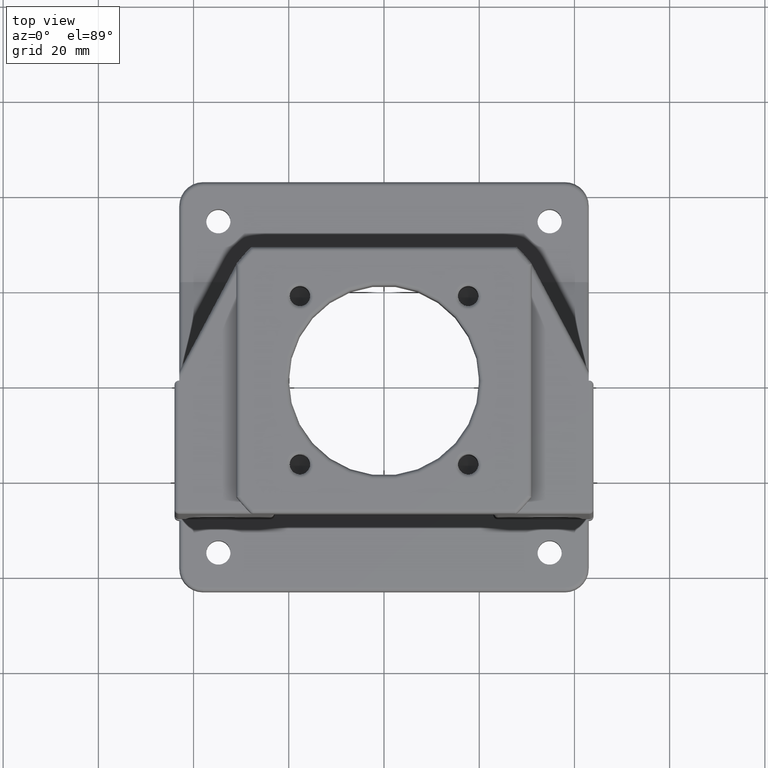
[diagram: clean part render]
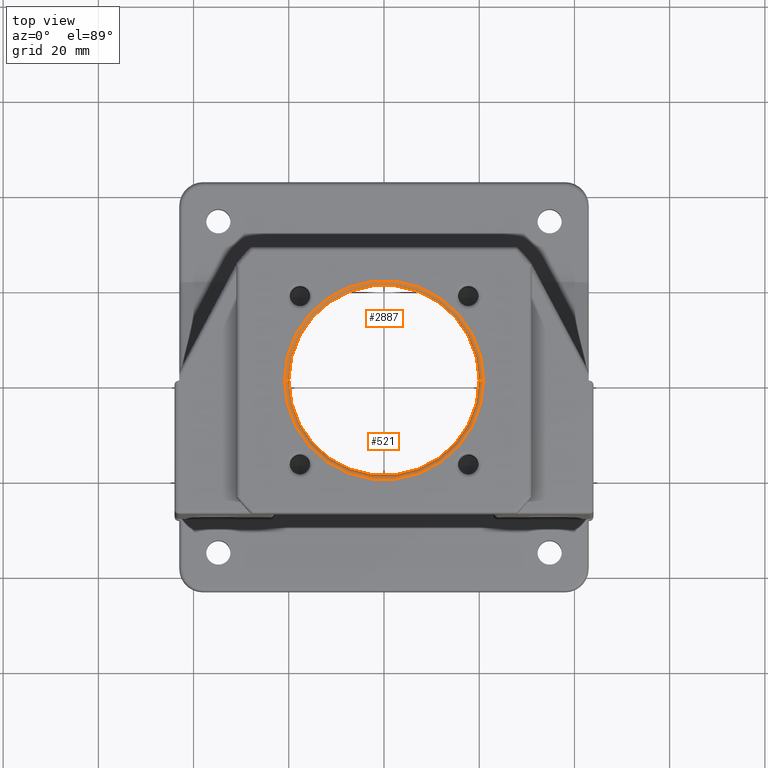
[diagram: same view with one multi-face feature highlighted, each face labeled with its STEP entity id]
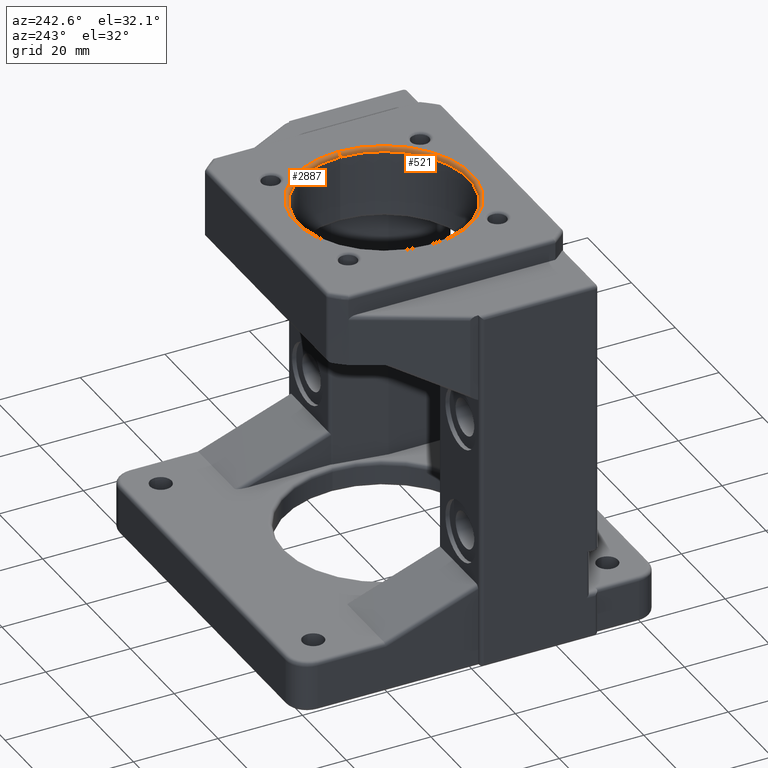
[diagram: same view with one multi-face feature highlighted, each face labeled with its STEP entity id]
A machine part, top view. The highlighted faces form ONE feature: a constant-radius fillet chain: 2 tangent blend faces with common blend radius 0.9 mm. The faces share edges in the B-rep.
A second angle (auxiliary view) of the same feature is appended — it is thin or edge-on in the first view.
Their STEP definitions:
[1] entity #2887 (Torus):
#798 = CARTESIAN_POINT ( 'NONE',  ( 0.0000000000000000000, 0.0000000000000000000, 85.10000000000000900 ) ) ;
#799 = DIRECTION ( 'NONE',  ( -0.0000000000000000000, 0.0000000000000000000, 1.000000000000000000 ) ) ;
#800 = DIRECTION ( 'NONE',  ( 1.000000000000000000, 0.0000000000000000000, 0.0000000000000000000 ) ) ;
#1006 = ORIENTED_EDGE ( 'NONE', *, *, #3835, .F. ) ;
#1053 = ORIENTED_EDGE ( 'NONE', *, *, #3836, .F. ) ;
#1128 = ORIENTED_EDGE ( 'NONE', *, *, #3833, .T. ) ;
#1220 = ORIENTED_EDGE ( 'NONE', *, *, #3834, .F. ) ;
#1426 = AXIS2_PLACEMENT_3D ( 'NONE', #798, #799, #800 ) ;
#1427 = TOROIDAL_SURFACE ( 'NONE', #1426, 20.90000000000000200, 0.9000000000000000200 ) ;
#2804 = CARTESIAN_POINT ( 'NONE',  ( 20.00000000000000000, 0.0000000000000000000, 85.10000000000000900 ) ) ;
#2805 = CARTESIAN_POINT ( 'NONE',  ( -20.00000000000000000, 2.449293598294706500E-015, 85.10000000000000900 ) ) ;
#2806 = CARTESIAN_POINT ( 'NONE',  ( 20.90000000000000200, 0.0000000000000000000, 86.00000000000000000 ) ) ;
#2807 = CARTESIAN_POINT ( 'NONE',  ( -20.90000000000000200, 2.559511810217968700E-015, 86.00000000000000000 ) ) ;
#2887 = ADVANCED_FACE ( 'NONE', ( #4313 ), #1427, .T. ) ;
#3276 = EDGE_LOOP ( 'NONE', ( #1220, #1128, #1006, #1053 ) ) ;
#3833 = EDGE_CURVE ( 'NONE', #7189, #7187, #7421, .T. ) ;
#3834 = EDGE_CURVE ( 'NONE', #7189, #7188, #7423, .T. ) ;
#3835 = EDGE_CURVE ( 'NONE', #7186, #7187, #7425, .T. ) ;
#3836 = EDGE_CURVE ( 'NONE', #7188, #7186, #7427, .T. ) ;
#4313 = FACE_OUTER_BOUND ( 'NONE', #3276, .T. ) ;
#5145 = DIRECTION ( 'NONE',  ( 0.0000000000000000000, 0.0000000000000000000, -1.000000000000000000 ) ) ;
#5146 = DIRECTION ( 'NONE',  ( 0.0000000000000000000, -1.000000000000000000, 0.0000000000000000000 ) ) ;
#5162 = CARTESIAN_POINT ( 'NONE',  ( -20.90000000000000200, 2.559511810217968700E-015, 85.10000000000000900 ) ) ;
#5195 = CARTESIAN_POINT ( 'NONE',  ( 20.90000000000000200, 0.0000000000000000000, 85.10000000000000900 ) ) ;
#5196 = DIRECTION ( 'NONE',  ( 1.000000000000000000, 0.0000000000000000000, 0.0000000000000000000 ) ) ;
#5206 = CARTESIAN_POINT ( 'NONE',  ( 0.0000000000000000000, 0.0000000000000000000, 86.00000000000000000 ) ) ;
#5258 = DIRECTION ( 'NONE',  ( -1.000000000000000000, 1.224646799147351000E-016, 0.0000000000000000000 ) ) ;
#5269 = DIRECTION ( 'NONE',  ( 1.224646799147353200E-016, 1.000000000000000000, 0.0000000000000000000 ) ) ;
#5271 = DIRECTION ( 'NONE',  ( 0.0000000000000000000, -0.0000000000000000000, -1.000000000000000000 ) ) ;
#5279 = DIRECTION ( 'NONE',  ( 1.000000000000000000, 0.0000000000000000000, 0.0000000000000000000 ) ) ;
#5280 = DIRECTION ( 'NONE',  ( -0.0000000000000000000, 0.0000000000000000000, 1.000000000000000000 ) ) ;
#5281 = CARTESIAN_POINT ( 'NONE',  ( 0.0000000000000000000, 0.0000000000000000000, 85.10000000000000900 ) ) ;
#7186 = VERTEX_POINT ( 'NONE', #2804 ) ;
#7187 = VERTEX_POINT ( 'NONE', #2805 ) ;
#7188 = VERTEX_POINT ( 'NONE', #2806 ) ;
#7189 = VERTEX_POINT ( 'NONE', #2807 ) ;
#7421 = CIRCLE ( 'NONE', #7422, 0.9000000000000014700 ) ;
#7422 = AXIS2_PLACEMENT_3D ( 'NONE', #5162, #5269, #5258 ) ;
#7423 = CIRCLE ( 'NONE', #7424, 20.90000000000000200 ) ;
#7424 = AXIS2_PLACEMENT_3D ( 'NONE', #5206, #5271, #5279 ) ;
#7425 = CIRCLE ( 'NONE', #7426, 20.00000000000000000 ) ;
#7426 = AXIS2_PLACEMENT_3D ( 'NONE', #5281, #5280, #5196 ) ;
#7427 = CIRCLE ( 'NONE', #7428, 0.8999999999999980200 ) ;
#7428 = AXIS2_PLACEMENT_3D ( 'NONE', #5195, #5146, #5145 ) ;
[2] entity #521 (Torus):
#521 = ADVANCED_FACE ( 'NONE', ( #6189 ), #4917, .T. ) ;
#1320 = AXIS2_PLACEMENT_3D ( 'NONE', #1558, #1559, #1560 ) ;
#1558 = CARTESIAN_POINT ( 'NONE',  ( 0.0000000000000000000, 0.0000000000000000000, 85.10000000000000900 ) ) ;
#1559 = DIRECTION ( 'NONE',  ( -0.0000000000000000000, 0.0000000000000000000, 1.000000000000000000 ) ) ;
#1560 = DIRECTION ( 'NONE',  ( 1.000000000000000000, 0.0000000000000000000, 0.0000000000000000000 ) ) ;
#2804 = CARTESIAN_POINT ( 'NONE',  ( 20.00000000000000000, 0.0000000000000000000, 85.10000000000000900 ) ) ;
#2805 = CARTESIAN_POINT ( 'NONE',  ( -20.00000000000000000, 2.449293598294706500E-015, 85.10000000000000900 ) ) ;
#2806 = CARTESIAN_POINT ( 'NONE',  ( 20.90000000000000200, 0.0000000000000000000, 86.00000000000000000 ) ) ;
#2807 = CARTESIAN_POINT ( 'NONE',  ( -20.90000000000000200, 2.559511810217968700E-015, 86.00000000000000000 ) ) ;
#3432 = EDGE_LOOP ( 'NONE', ( #5826, #5827, #5828, #5825 ) ) ;
#3833 = EDGE_CURVE ( 'NONE', #7189, #7187, #7421, .T. ) ;
#3836 = EDGE_CURVE ( 'NONE', #7188, #7186, #7427, .T. ) ;
#3898 = EDGE_CURVE ( 'NONE', #7188, #7189, #6589, .T. ) ;
#3990 = EDGE_CURVE ( 'NONE', #7187, #7186, #6503, .T. ) ;
#4727 = DIRECTION ( 'NONE',  ( 1.000000000000000000, 0.0000000000000000000, 0.0000000000000000000 ) ) ;
#4745 = CARTESIAN_POINT ( 'NONE',  ( 0.0000000000000000000, 0.0000000000000000000, 86.00000000000000000 ) ) ;
#4749 = DIRECTION ( 'NONE',  ( 0.0000000000000000000, -0.0000000000000000000, -1.000000000000000000 ) ) ;
#4872 = AXIS2_PLACEMENT_3D ( 'NONE', #5477, #5490, #5496 ) ;
#4917 = TOROIDAL_SURFACE ( 'NONE', #4872, 20.90000000000000200, 0.9000000000000000200 ) ;
#5145 = DIRECTION ( 'NONE',  ( 0.0000000000000000000, 0.0000000000000000000, -1.000000000000000000 ) ) ;
#5146 = DIRECTION ( 'NONE',  ( 0.0000000000000000000, -1.000000000000000000, 0.0000000000000000000 ) ) ;
#5162 = CARTESIAN_POINT ( 'NONE',  ( -20.90000000000000200, 2.559511810217968700E-015, 85.10000000000000900 ) ) ;
#5195 = CARTESIAN_POINT ( 'NONE',  ( 20.90000000000000200, 0.0000000000000000000, 85.10000000000000900 ) ) ;
#5258 = DIRECTION ( 'NONE',  ( -1.000000000000000000, 1.224646799147351000E-016, 0.0000000000000000000 ) ) ;
#5269 = DIRECTION ( 'NONE',  ( 1.224646799147353200E-016, 1.000000000000000000, 0.0000000000000000000 ) ) ;
#5477 = CARTESIAN_POINT ( 'NONE',  ( 0.0000000000000000000, 0.0000000000000000000, 85.10000000000000900 ) ) ;
#5490 = DIRECTION ( 'NONE',  ( -0.0000000000000000000, 0.0000000000000000000, 1.000000000000000000 ) ) ;
#5496 = DIRECTION ( 'NONE',  ( 1.000000000000000000, 0.0000000000000000000, 0.0000000000000000000 ) ) ;
#5825 = ORIENTED_EDGE ( 'NONE', *, *, #3990, .F. ) ;
#5826 = ORIENTED_EDGE ( 'NONE', *, *, #3833, .F. ) ;
#5827 = ORIENTED_EDGE ( 'NONE', *, *, #3898, .F. ) ;
#5828 = ORIENTED_EDGE ( 'NONE', *, *, #3836, .T. ) ;
#6189 = FACE_OUTER_BOUND ( 'NONE', #3432, .T. ) ;
#6503 = CIRCLE ( 'NONE', #1320, 20.00000000000000000 ) ;
#6589 = CIRCLE ( 'NONE', #6590, 20.90000000000000200 ) ;
#6590 = AXIS2_PLACEMENT_3D ( 'NONE', #4745, #4749, #4727 ) ;
#7186 = VERTEX_POINT ( 'NONE', #2804 ) ;
#7187 = VERTEX_POINT ( 'NONE', #2805 ) ;
#7188 = VERTEX_POINT ( 'NONE', #2806 ) ;
#7189 = VERTEX_POINT ( 'NONE', #2807 ) ;
#7421 = CIRCLE ( 'NONE', #7422, 0.9000000000000014700 ) ;
#7422 = AXIS2_PLACEMENT_3D ( 'NONE', #5162, #5269, #5258 ) ;
#7427 = CIRCLE ( 'NONE', #7428, 0.8999999999999980200 ) ;
#7428 = AXIS2_PLACEMENT_3D ( 'NONE', #5195, #5146, #5145 ) ;